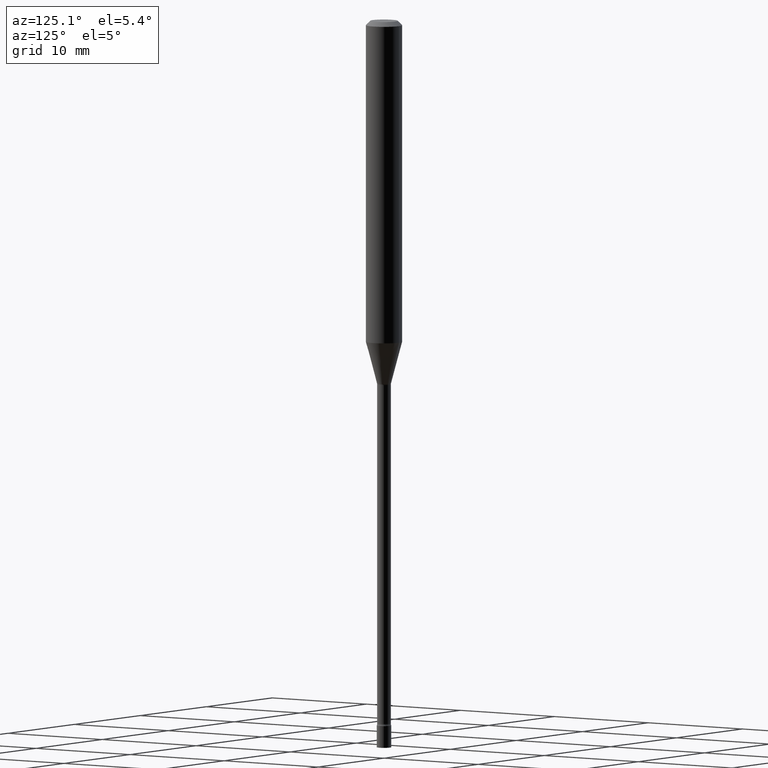
[diagram: clean part render]
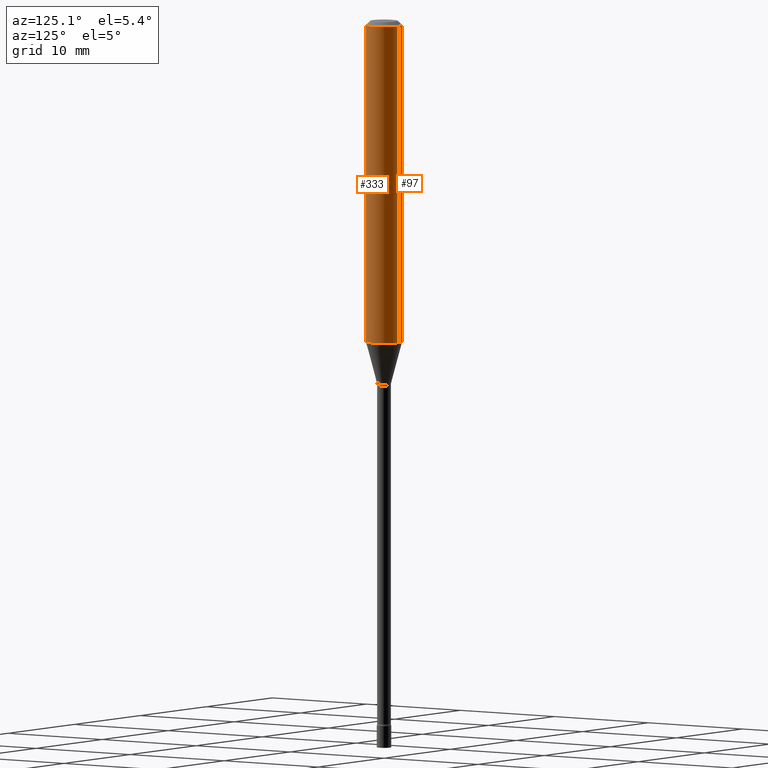
[diagram: same view with one multi-face feature highlighted, each face labeled with its STEP entity id]
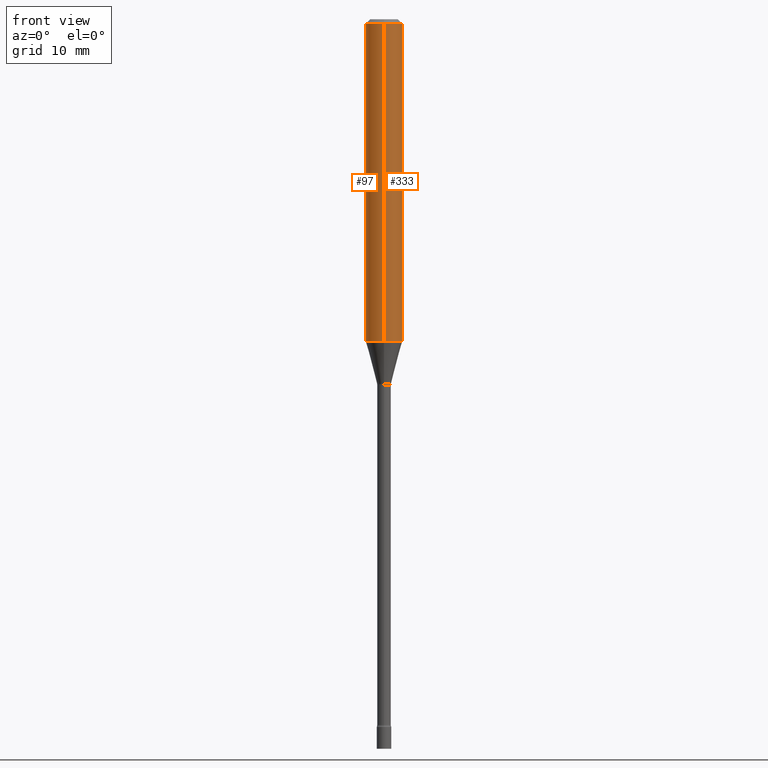
[diagram: same view with one multi-face feature highlighted, each face labeled with its STEP entity id]
A machine part, auxiliary view. The highlighted faces form ONE feature: a constant-radius fillet chain: 2 tangent blend faces with common blend radius 1.5875 mm. The faces share edges in the B-rep.
A second angle (front view) of the same feature is appended — it is thin or edge-on in the first view.
Their STEP definitions:
[1] entity #97 (Cylinder):
#52 = LINE ( 'NONE', #251, #194 ) ;
#91 = EDGE_CURVE ( 'NONE', #132, #498, #237, .T. ) ;
#97 = ADVANCED_FACE ( 'NONE', ( #358 ), #275, .T. ) ;
#111 = CARTESIAN_POINT ( 'NONE',  ( -4.364351673553647988E-16, -0.06250000000000388578, -1.104450018504813613 ) ) ;
#112 = CARTESIAN_POINT ( 'NONE',  ( 2.700889685043482305E-29, -3.856178634514979647E-15, -1.104450018504814057 ) ) ;
#127 = EDGE_LOOP ( 'NONE', ( #336, #250, #370, #289 ) ) ;
#132 = VERTEX_POINT ( 'NONE', #242 ) ;
#181 = VECTOR ( 'NONE', #292, 39.37007874015748143 ) ;
#190 = DIRECTION ( 'NONE',  ( -2.445461215800332779E-29, 3.491492208706202500E-15, 1.000000000000000000 ) ) ;
#194 = VECTOR ( 'NONE', #254, 39.37007874015748143 ) ;
#196 = DIRECTION ( 'NONE',  ( -6.982962677686265922E-15, -1.000000000000000000, 4.370956789862821150E-15 ) ) ;
#217 = VERTEX_POINT ( 'NONE', #367 ) ;
#218 = EDGE_CURVE ( 'NONE', #132, #452, #409, .T. ) ;
#222 = CIRCLE ( 'NONE', #248, 0.06250000000000000000 ) ;
#228 = DIRECTION ( 'NONE',  ( -6.982962677686265922E-15, -1.000000000000000000, 3.491492208706202106E-15 ) ) ;
#237 = CIRCLE ( 'NONE', #520, 0.06250000000000000000 ) ;
#240 = EDGE_CURVE ( 'NONE', #498, #217, #52, .T. ) ;
#242 = CARTESIAN_POINT ( 'NONE',  ( 4.440892098500893388E-16, 0.06249999999999612116, -1.104450018504814057 ) ) ;
#248 = AXIS2_PLACEMENT_3D ( 'NONE', #321, #389, #466 ) ;
#250 = ORIENTED_EDGE ( 'NONE', *, *, #91, .T. ) ;
#251 = CARTESIAN_POINT ( 'NONE',  ( -4.364351673553916201E-16, -0.06250000000000000000, 2.182182630441376316E-16 ) ) ;
#254 = DIRECTION ( 'NONE',  ( -2.445461215800333059E-29, 3.491492208706202106E-15, 1.000000000000000000 ) ) ;
#275 = CYLINDRICAL_SURFACE ( 'NONE', #428, 0.06250000000000000000 ) ;
#289 = ORIENTED_EDGE ( 'NONE', *, *, #397, .F. ) ;
#292 = DIRECTION ( 'NONE',  ( -2.445461215800333059E-29, 3.491492208706202106E-15, 1.000000000000000000 ) ) ;
#321 = CARTESIAN_POINT ( 'NONE',  ( 3.668191823700506017E-31, -5.237238313059314424E-17, -0.01500000000000003067 ) ) ;
#336 = ORIENTED_EDGE ( 'NONE', *, *, #218, .F. ) ;
#358 = FACE_OUTER_BOUND ( 'NONE', #127, .T. ) ;
#367 = CARTESIAN_POINT ( 'NONE',  ( -4.364351673553912750E-16, -0.06250000000000005551, -0.01499999999999981209 ) ) ;
#370 = ORIENTED_EDGE ( 'NONE', *, *, #240, .T. ) ;
#382 = CARTESIAN_POINT ( 'NONE',  ( 0.000000000000000000, 0.000000000000000000, 0.000000000000000000 ) ) ;
#384 = DIRECTION ( 'NONE',  ( -2.445461215800332779E-29, 3.491492208706202500E-15, 1.000000000000000000 ) ) ;
#389 = DIRECTION ( 'NONE',  ( -2.445461215800332779E-29, 3.491492208706202500E-15, 1.000000000000000000 ) ) ;
#397 = EDGE_CURVE ( 'NONE', #452, #217, #222, .T. ) ;
#409 = LINE ( 'NONE', #488, #181 ) ;
#428 = AXIS2_PLACEMENT_3D ( 'NONE', #382, #190, #228 ) ;
#452 = VERTEX_POINT ( 'NONE', #506 ) ;
#466 = DIRECTION ( 'NONE',  ( -6.982962677686265922E-15, -1.000000000000000000, 3.483106191921935554E-15 ) ) ;
#488 = CARTESIAN_POINT ( 'NONE',  ( 4.440892098500625669E-16, 0.06250000000000000000, -2.182182630441376316E-16 ) ) ;
#498 = VERTEX_POINT ( 'NONE', #111 ) ;
#506 = CARTESIAN_POINT ( 'NONE',  ( 4.440892098500897333E-16, 0.06249999999999995143, -0.01500000000000024751 ) ) ;
#520 = AXIS2_PLACEMENT_3D ( 'NONE', #112, #384, #196 ) ;
[2] entity #333 (Cylinder):
#37 = EDGE_CURVE ( 'NONE', #498, #132, #193, .T. ) ;
#43 = CARTESIAN_POINT ( 'NONE',  ( 3.668191823700506017E-31, -5.237238313059314424E-17, -0.01500000000000003067 ) ) ;
#52 = LINE ( 'NONE', #251, #194 ) ;
#61 = AXIS2_PLACEMENT_3D ( 'NONE', #43, #133, #290 ) ;
#67 = CARTESIAN_POINT ( 'NONE',  ( 0.000000000000000000, 0.000000000000000000, 0.000000000000000000 ) ) ;
#73 = DIRECTION ( 'NONE',  ( -2.445461215800332779E-29, 3.491492208706202500E-15, 1.000000000000000000 ) ) ;
#111 = CARTESIAN_POINT ( 'NONE',  ( -4.364351673553647988E-16, -0.06250000000000388578, -1.104450018504813613 ) ) ;
#124 = CYLINDRICAL_SURFACE ( 'NONE', #262, 0.06250000000000000000 ) ;
#132 = VERTEX_POINT ( 'NONE', #242 ) ;
#133 = DIRECTION ( 'NONE',  ( -2.445461215800332779E-29, 3.491492208706202500E-15, 1.000000000000000000 ) ) ;
#141 = DIRECTION ( 'NONE',  ( -2.445461215800332779E-29, 3.491492208706202500E-15, 1.000000000000000000 ) ) ;
#154 = FACE_OUTER_BOUND ( 'NONE', #189, .T. ) ;
#175 = ORIENTED_EDGE ( 'NONE', *, *, #37, .T. ) ;
#181 = VECTOR ( 'NONE', #292, 39.37007874015748143 ) ;
#189 = EDGE_LOOP ( 'NONE', ( #175, #519, #413, #454 ) ) ;
#193 = CIRCLE ( 'NONE', #375, 0.06250000000000000000 ) ;
#194 = VECTOR ( 'NONE', #254, 39.37007874015748143 ) ;
#217 = VERTEX_POINT ( 'NONE', #367 ) ;
#218 = EDGE_CURVE ( 'NONE', #132, #452, #409, .T. ) ;
#219 = CARTESIAN_POINT ( 'NONE',  ( 2.700889685043482305E-29, -3.856178634514979647E-15, -1.104450018504814057 ) ) ;
#231 = DIRECTION ( 'NONE',  ( -6.982962677686265922E-15, -1.000000000000000000, 4.370956789862821150E-15 ) ) ;
#240 = EDGE_CURVE ( 'NONE', #498, #217, #52, .T. ) ;
#242 = CARTESIAN_POINT ( 'NONE',  ( 4.440892098500893388E-16, 0.06249999999999612116, -1.104450018504814057 ) ) ;
#251 = CARTESIAN_POINT ( 'NONE',  ( -4.364351673553916201E-16, -0.06250000000000000000, 2.182182630441376316E-16 ) ) ;
#254 = DIRECTION ( 'NONE',  ( -2.445461215800333059E-29, 3.491492208706202106E-15, 1.000000000000000000 ) ) ;
#262 = AXIS2_PLACEMENT_3D ( 'NONE', #67, #73, #361 ) ;
#287 = EDGE_CURVE ( 'NONE', #217, #452, #288, .T. ) ;
#288 = CIRCLE ( 'NONE', #61, 0.06250000000000000000 ) ;
#290 = DIRECTION ( 'NONE',  ( -6.982962677686265922E-15, -1.000000000000000000, 3.483106191921935554E-15 ) ) ;
#292 = DIRECTION ( 'NONE',  ( -2.445461215800333059E-29, 3.491492208706202106E-15, 1.000000000000000000 ) ) ;
#333 = ADVANCED_FACE ( 'NONE', ( #154 ), #124, .T. ) ;
#361 = DIRECTION ( 'NONE',  ( -6.982962677686265922E-15, -1.000000000000000000, 3.491492208706202106E-15 ) ) ;
#367 = CARTESIAN_POINT ( 'NONE',  ( -4.364351673553912750E-16, -0.06250000000000005551, -0.01499999999999981209 ) ) ;
#375 = AXIS2_PLACEMENT_3D ( 'NONE', #219, #141, #231 ) ;
#409 = LINE ( 'NONE', #488, #181 ) ;
#413 = ORIENTED_EDGE ( 'NONE', *, *, #287, .F. ) ;
#452 = VERTEX_POINT ( 'NONE', #506 ) ;
#454 = ORIENTED_EDGE ( 'NONE', *, *, #240, .F. ) ;
#488 = CARTESIAN_POINT ( 'NONE',  ( 4.440892098500625669E-16, 0.06250000000000000000, -2.182182630441376316E-16 ) ) ;
#498 = VERTEX_POINT ( 'NONE', #111 ) ;
#506 = CARTESIAN_POINT ( 'NONE',  ( 4.440892098500897333E-16, 0.06249999999999995143, -0.01500000000000024751 ) ) ;
#519 = ORIENTED_EDGE ( 'NONE', *, *, #218, .T. ) ;